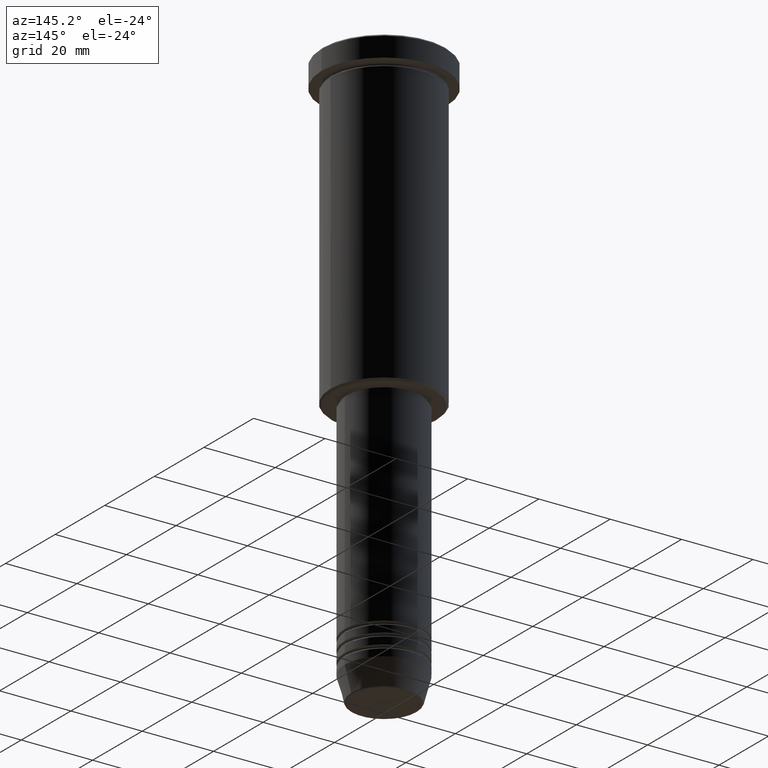
[diagram: clean part render]
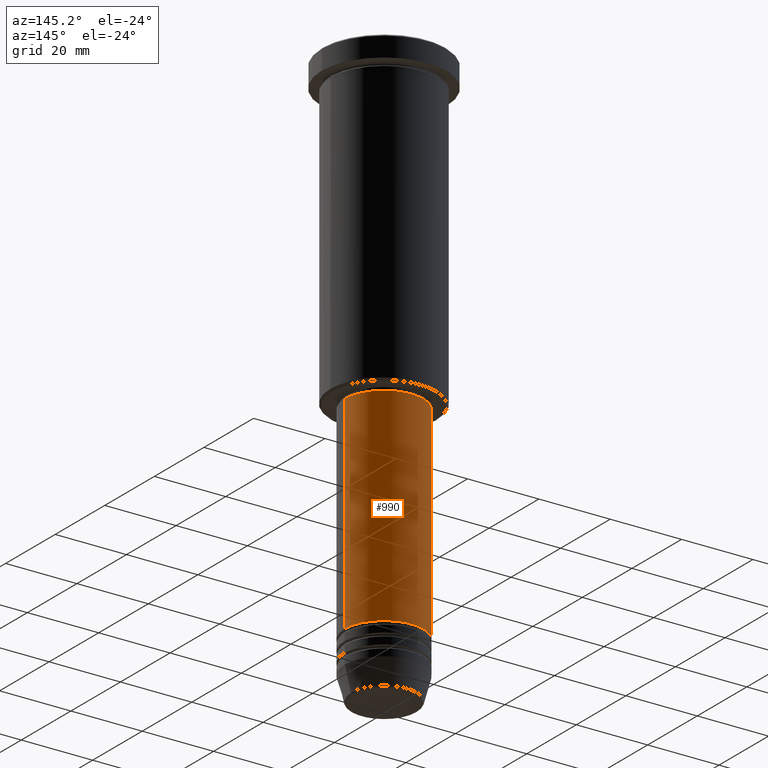
[diagram: same view with one face highlighted and labeled with its STEP entity id]
A machine part, auxiliary view. The second image highlights one B-rep face of the part: STEP entity #990.
In plain terms, the highlighted cylindrical surface (partial cylindrical patch) has radius 11 mm, axis along (-0, -0, 1).
Its self-contained STEP definition (entity closure, byte-faithful):
#28 = ORIENTED_EDGE ( 'NONE', *, *, #682, .F. ) ;
#31 = CYLINDRICAL_SURFACE ( 'NONE', #996, 11.00000000000000000 ) ;
#45 = LINE ( 'NONE', #334, #936 ) ;
#49 = CIRCLE ( 'NONE', #943, 11.00000000000000000 ) ;
#88 = DIRECTION ( 'NONE',  ( -0.000000000000000000, -0.000000000000000000, 1.000000000000000000 ) ) ;
#239 = EDGE_CURVE ( 'NONE', #272, #1003, #49, .T. ) ;
#272 = VERTEX_POINT ( 'NONE', #409 ) ;
#306 = DIRECTION ( 'NONE',  ( -0.000000000000000000, -0.000000000000000000, 1.000000000000000000 ) ) ;
#313 = DIRECTION ( 'NONE',  ( -0.000000000000000000, -0.000000000000000000, 1.000000000000000000 ) ) ;
#334 = CARTESIAN_POINT ( 'NONE',  ( -11.00000000000000000, 1.347111479062088405E-15, 0.000000000000000000 ) ) ;
#399 = CIRCLE ( 'NONE', #519, 11.00000000000000000 ) ;
#407 = FACE_OUTER_BOUND ( 'NONE', #413, .T. ) ;
#409 = CARTESIAN_POINT ( 'NONE',  ( 11.00000000000000000, 0.000000000000000000, -144.9999999999999716 ) ) ;
#413 = EDGE_LOOP ( 'NONE', ( #458, #1144, #28, #1134 ) ) ;
#458 = ORIENTED_EDGE ( 'NONE', *, *, #239, .T. ) ;
#519 = AXIS2_PLACEMENT_3D ( 'NONE', #760, #313, #562 ) ;
#525 = CARTESIAN_POINT ( 'NONE',  ( -11.00000000000000000, 1.347111479062088405E-15, -87.00000000000000000 ) ) ;
#562 = DIRECTION ( 'NONE',  ( 1.000000000000000000, 0.000000000000000000, 0.000000000000000000 ) ) ;
#588 = DIRECTION ( 'NONE',  ( -0.000000000000000000, -0.000000000000000000, 1.000000000000000000 ) ) ;
#667 = CARTESIAN_POINT ( 'NONE',  ( -11.00000000000000000, 1.347111479062088405E-15, -144.9999999999999716 ) ) ;
#682 = EDGE_CURVE ( 'NONE', #964, #1119, #399, .T. ) ;
#684 = DIRECTION ( 'NONE',  ( 1.000000000000000000, 0.000000000000000000, 0.000000000000000000 ) ) ;
#689 = CARTESIAN_POINT ( 'NONE',  ( 0.000000000000000000, 0.000000000000000000, 0.000000000000000000 ) ) ;
#709 = EDGE_CURVE ( 'NONE', #1003, #1119, #45, .T. ) ;
#760 = CARTESIAN_POINT ( 'NONE',  ( 0.000000000000000000, 0.000000000000000000, -87.00000000000000000 ) ) ;
#771 = LINE ( 'NONE', #927, #972 ) ;
#833 = EDGE_CURVE ( 'NONE', #272, #964, #771, .T. ) ;
#860 = CARTESIAN_POINT ( 'NONE',  ( 0.000000000000000000, 0.000000000000000000, -144.9999999999999716 ) ) ;
#880 = DIRECTION ( 'NONE',  ( 1.000000000000000000, 0.000000000000000000, 0.000000000000000000 ) ) ;
#885 = DIRECTION ( 'NONE',  ( -0.000000000000000000, -0.000000000000000000, 1.000000000000000000 ) ) ;
#927 = CARTESIAN_POINT ( 'NONE',  ( 11.00000000000000000, 0.000000000000000000, 0.000000000000000000 ) ) ;
#936 = VECTOR ( 'NONE', #588, 1000.000000000000000 ) ;
#943 = AXIS2_PLACEMENT_3D ( 'NONE', #860, #885, #880 ) ;
#951 = CARTESIAN_POINT ( 'NONE',  ( 11.00000000000000000, 0.000000000000000000, -87.00000000000000000 ) ) ;
#964 = VERTEX_POINT ( 'NONE', #951 ) ;
#972 = VECTOR ( 'NONE', #88, 1000.000000000000000 ) ;
#990 = ADVANCED_FACE ( 'NONE', ( #407 ), #31, .T. ) ;
#996 = AXIS2_PLACEMENT_3D ( 'NONE', #689, #306, #684 ) ;
#1003 = VERTEX_POINT ( 'NONE', #667 ) ;
#1119 = VERTEX_POINT ( 'NONE', #525 ) ;
#1134 = ORIENTED_EDGE ( 'NONE', *, *, #833, .F. ) ;
#1144 = ORIENTED_EDGE ( 'NONE', *, *, #709, .T. ) ;